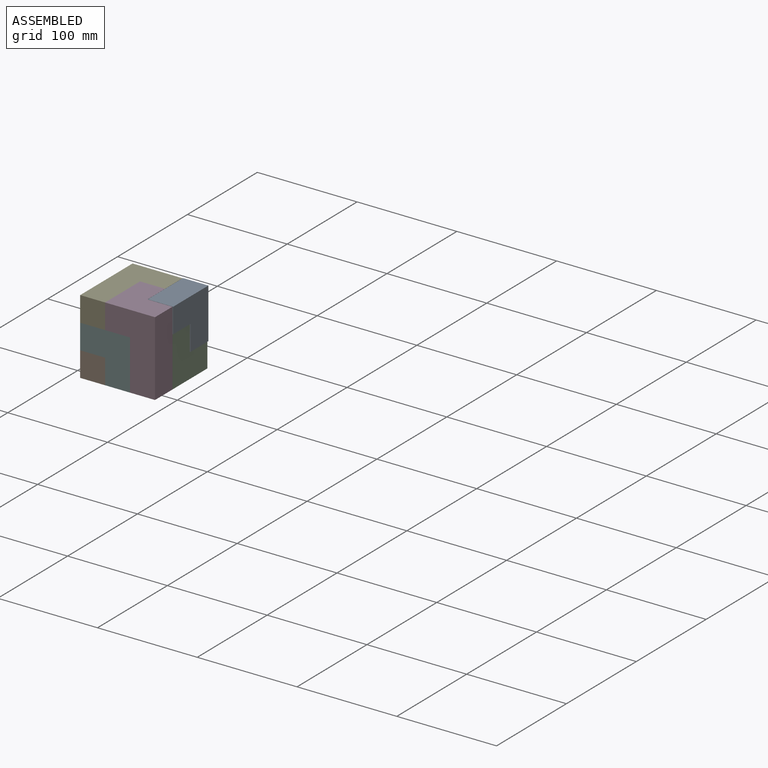
[diagram: assembled view]
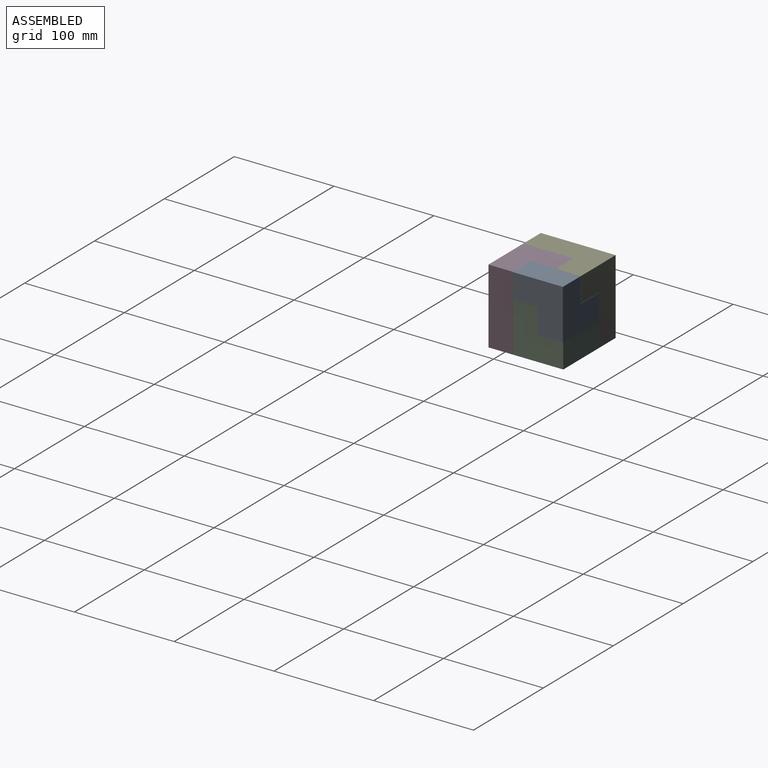
[diagram: assembled view, second angle]
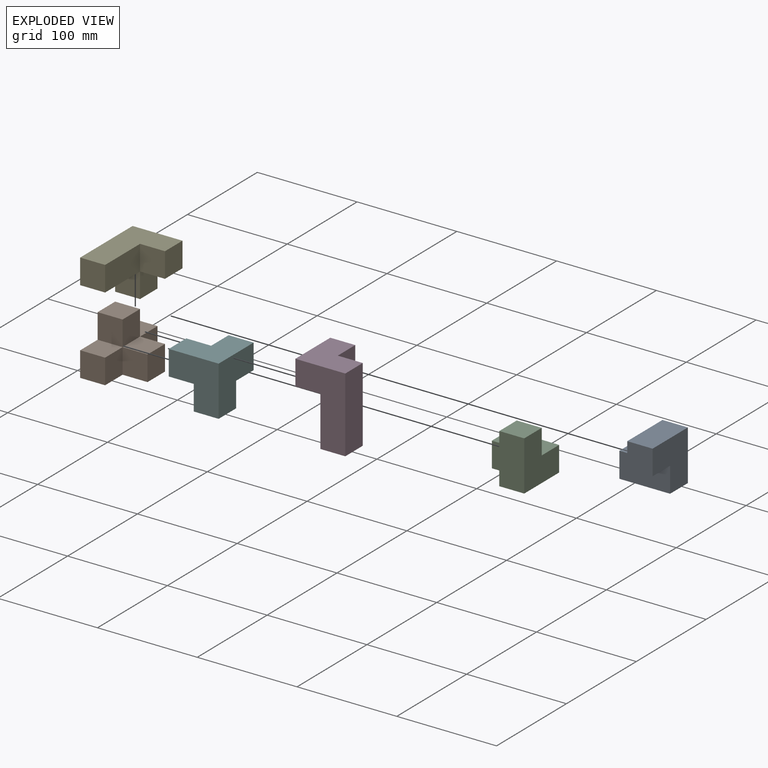
[diagram: exploded view]
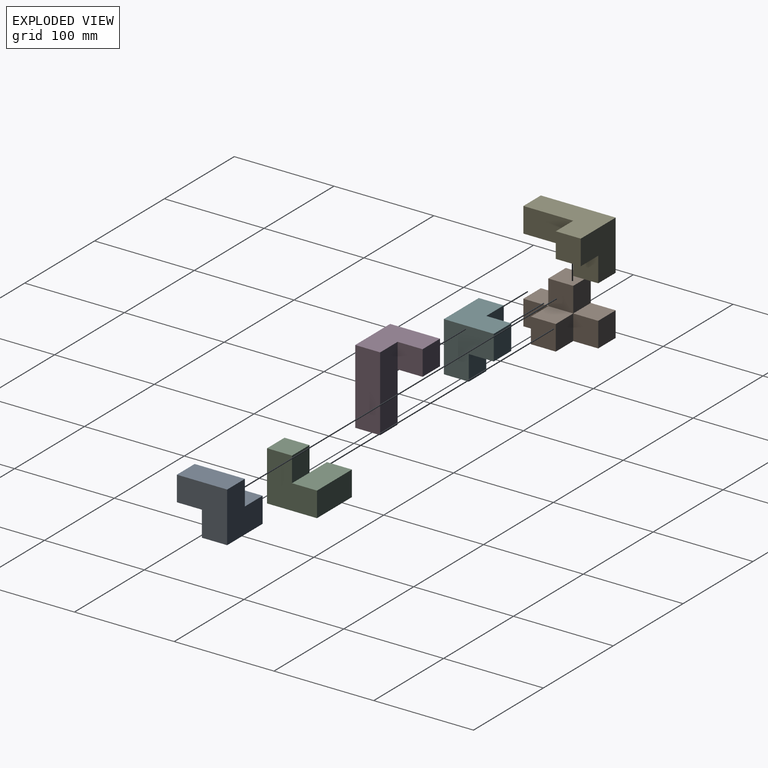
[diagram: exploded view, second angle]
ASSEMBLY  parts=6 mates=5
PART A: 10 faces, bbox 50.4x50.4x50.8 mm
  f0: plane 50.4x25mm, normal (0,0,-1), area 1260mm2, adj f1,f2,f3,f5,f8
  f1: plane 50.4x25.4mm, normal (0,-1,0), area 1280.2mm2, adj f0,f2,f4,f5
  f2: plane 25.4x25mm, normal (1,0,0), area 635mm2, adj f0,f1,f3,f4
  f3: plane 25.4x25mm, normal (0,1,0), area 635mm2, adj f0,f2,f4,f6
  f4: plane 50.4x50.4mm, normal (0,0,1), area 1905.2mm2, adj f1,f2,f3,f5,f6,f7
  f5: plane 50.8x50.4mm, normal (-1,0,0), area 1925.3mm2, adj f0,f1,f4,f7,f8,f9
  f6: plane 50.8x25.4mm, normal (1,0,0), area 1290.3mm2, adj f3,f4,f7,f8,f9
  f7: plane 50.8x25.4mm, normal (0,1,0), area 1290.3mm2, adj f4,f5,f6,f9
  f8: plane 25.4x25.4mm, normal (0,-1,0), area 645.2mm2, adj f0,f5,f6,f9
  f9: plane 25.4x25.4mm, normal (0,0,-1), area 645.2mm2, adj f5,f6,f7,f8
PART B: 16 faces, bbox 75x50x50 mm
  f0: plane 25x25mm, normal (1,0,0), area 625mm2, adj f4,f10,f12,f13
  f1: plane 25x25mm, normal (0,0,1), area 625mm2, adj f2,f3,f7,f10
  f2: plane 25x25mm, normal (-1,0,0), area 625mm2, adj f1,f6,f7,f8
  f3: plane 25x25mm, normal (1,0,0), area 625mm2, adj f1,f6,f7,f14
  f4: plane 75x50mm, normal (0,1,0), area 2500mm2, adj f0,f5,f6,f9,f11,f12,f13,f15
  f5: plane 25x25mm, normal (0,0,1), area 625mm2, adj f4,f8,f9,f11
  f6: plane 75x50mm, normal (0,0,-1), area 2500mm2, adj f2,f3,f4,f7,f8,f9,f14,f15
  f7: plane 25x25mm, normal (0,-1,0), area 625mm2, adj f1,f2,f3,f6
  f8: plane 25x25mm, normal (0,-1,0), area 625mm2, adj f2,f5,f6,f9
  f9: plane 25x25mm, normal (-1,0,0), area 625mm2, adj f4,f5,f6,f8
  f10: plane 25x25mm, normal (0,-1,0), area 625mm2, adj f0,f1,f11,f12
  f11: plane 25x25mm, normal (-1,0,0), area 625mm2, adj f4,f5,f10,f12
  f12: plane 25x25mm, normal (0,0,1), area 625mm2, adj f0,f4,f10,f11
  f13: plane 25x25mm, normal (0,0,1), area 625mm2, adj f0,f4,f14,f15
  f14: plane 25x25mm, normal (0,-1,0), area 625mm2, adj f3,f6,f13,f15
  f15: plane 25x25mm, normal (1,0,0), area 625mm2, adj f4,f6,f13,f14
PART C: 10 faces, bbox 50x50x50 mm
  f0: plane 50x25mm, normal (0,0,1), area 1250mm2, adj f1,f2,f3,f5,f8
  f1: plane 25x25mm, normal (0,1,0), area 625mm2, adj f0,f3,f4,f6
  f2: plane 50x25mm, normal (0,-1,0), area 1250mm2, adj f0,f3,f4,f5
  f3: plane 25x25mm, normal (1,0,0), area 625mm2, adj f0,f1,f2,f4
  f4: plane 50x50mm, normal (0,0,-1), area 1875mm2, adj f1,f2,f3,f5,f6,f7
  f5: plane 50x50mm, normal (-1,0,0), area 1875mm2, adj f0,f2,f4,f7,f8,f9
  f6: plane 50x25mm, normal (1,0,0), area 1250mm2, adj f1,f4,f7,f8,f9
  f7: plane 50x25mm, normal (0,1,0), area 1250mm2, adj f4,f5,f6,f9
  f8: plane 25x25mm, normal (0,-1,0), area 625mm2, adj f0,f5,f6,f9
  f9: plane 25x25mm, normal (0,0,1), area 625mm2, adj f5,f6,f7,f8
PART D: 10 faces, bbox 50x75x50 mm
  f0: plane 75x25mm, normal (0,0,-1), area 1875mm2, adj f3,f5,f6,f8,f9
  f1: plane 50x25mm, normal (-1,0,0), area 1250mm2, adj f2,f3,f4,f7
  f2: plane 50x25mm, normal (0,-1,0), area 1250mm2, adj f1,f4,f6,f7,f8
  f3: plane 50x50mm, normal (0,1,0), area 1875mm2, adj f0,f1,f4,f5,f6,f7
  f4: plane 75x50mm, normal (0,0,1), area 2500mm2, adj f1,f2,f3,f5,f8,f9
  f5: plane 75x25mm, normal (1,0,0), area 1875mm2, adj f0,f3,f4,f9
  f6: plane 25x25mm, normal (1,0,0), area 625mm2, adj f0,f2,f3,f7
  f7: plane 25x25mm, normal (0,0,-1), area 625mm2, adj f1,f2,f3,f6
  f8: plane 50x25mm, normal (-1,0,0), area 1250mm2, adj f0,f2,f4,f9
  f9: plane 25x25mm, normal (0,-1,0), area 625mm2, adj f0,f4,f5,f8
PART E: 12 faces, bbox 50x50x75 mm
  f0: plane 25x25mm, normal (0,-1,0), area 625mm2, adj f5,f6,f7,f10
  f1: plane 50x25mm, normal (-1,0,0), area 1250mm2, adj f2,f3,f6,f8
  f2: plane 75x50mm, normal (0,1,0), area 2500mm2, adj f1,f4,f5,f6,f7,f8
  f3: plane 50x25mm, normal (0,-1,0), area 1250mm2, adj f1,f4,f8,f9
  f4: plane 75x50mm, normal (1,0,0), area 2500mm2, adj f2,f3,f5,f8,f9,f11
  f5: plane 50x50mm, normal (0,0,-1), area 1875mm2, adj f0,f2,f4,f7,f10,f11
  f6: plane 25x25mm, normal (0,0,1), area 625mm2, adj f0,f1,f2,f7
  f7: plane 25x25mm, normal (-1,0,0), area 625mm2, adj f0,f2,f5,f6
  f8: plane 25x25mm, normal (0,0,1), area 625mm2, adj f1,f2,f3,f4
  f9: plane 25x25mm, normal (0,0,1), area 625mm2, adj f3,f4,f10,f11
  f10: plane 25x25mm, normal (-1,0,0), area 625mm2, adj f0,f5,f9,f11
  f11: plane 25x25mm, normal (0,-1,0), area 625mm2, adj f4,f5,f9,f10
PART F: 12 faces, bbox 50x50x50 mm
  f0: plane 25x25mm, normal (-1,0,0), area 625mm2, adj f3,f7,f8,f9
  f1: plane 25x25mm, normal (0,0,-1), area 625mm2, adj f2,f4,f6,f7
  f2: plane 25x25mm, normal (-1,0,0), area 625mm2, adj f1,f5,f6,f10
  f3: plane 50x50mm, normal (0,-1,0), area 1875mm2, adj f0,f4,f5,f8,f9,f11
  f4: plane 50x50mm, normal (1,0,0), area 1875mm2, adj f1,f3,f5,f6,f7,f8
  f5: plane 50x50mm, normal (0,0,1), area 1875mm2, adj f2,f3,f4,f6,f10,f11
  f6: plane 25x25mm, normal (0,1,0), area 625mm2, adj f1,f2,f4,f5
  f7: plane 25x25mm, normal (0,1,0), area 625mm2, adj f0,f1,f4,f8
  f8: plane 25x25mm, normal (0,0,-1), area 625mm2, adj f0,f3,f4,f7
  f9: plane 25x25mm, normal (0,0,-1), area 625mm2, adj f0,f3,f10,f11
  f10: plane 25x25mm, normal (0,1,0), area 625mm2, adj f2,f5,f9,f11
  f11: plane 25x25mm, normal (-1,0,0), area 625mm2, adj f3,f5,f9,f10
PLACE A rot(axis=(-0.58,0.58,-0.58),120deg) t=(-11.85,-164.17,12.17)mm
PLACE B rot(axis=(0,0,1),90deg) t=(-62.65,-188.97,-63.03)mm
PLACE C rot(axis=(0,0,-1),180deg) t=(-37.65,-163.97,-63.03)mm
PLACE D rot(axis=(1,0,0),90deg) t=(-62.65,-213.97,-13.03)mm
PLACE E rot(axis=(0.58,-0.58,0.58),120deg) t=(-87.65,-163.97,-13.03)mm
PLACE F rot(axis=(-0.58,0.58,-0.58),120deg) t=(-62.65,-188.97,-13.03)mm
MATE fastened E.f7 <-> B.f13  axis (0,0,-1) through (-75.15,-151.47,-38.03)mm
MATE fastened C.f3 <-> B.f14  axis (-1,0,0) through (-62.65,-151.47,-50.53)mm
MATE fastened A.f9 <-> E.f0  axis (-1,0,0) through (-62.65,-151.47,-25.53)mm
MATE fastened D.f1 <-> E.f3  axis (-1,0,0) through (-62.65,-188.97,-0.53)mm
MATE fastened F.f1 <-> B.f8  axis (-1,0,0) through (-62.65,-201.47,-50.53)mm
